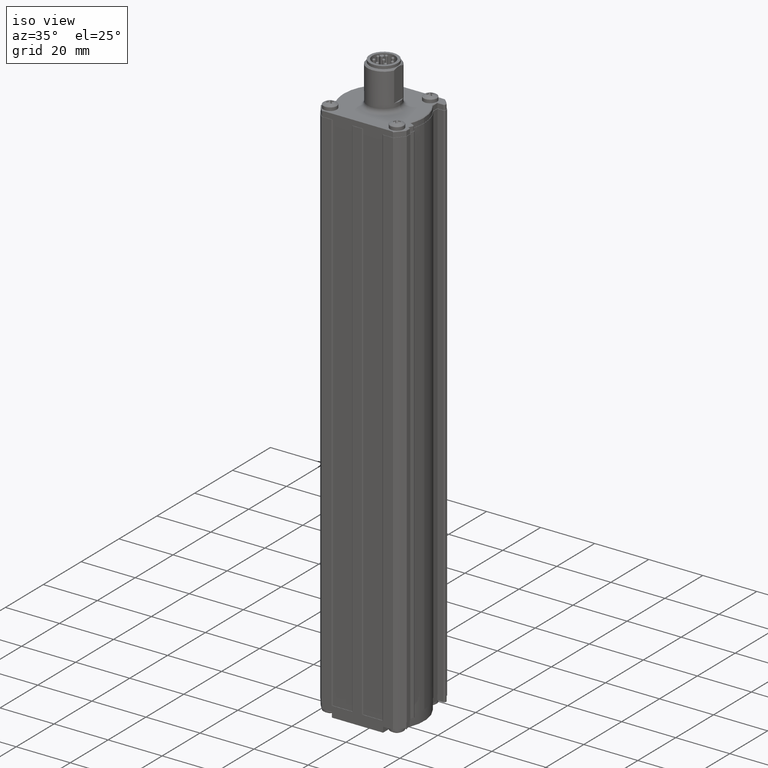
[diagram: clean part render]
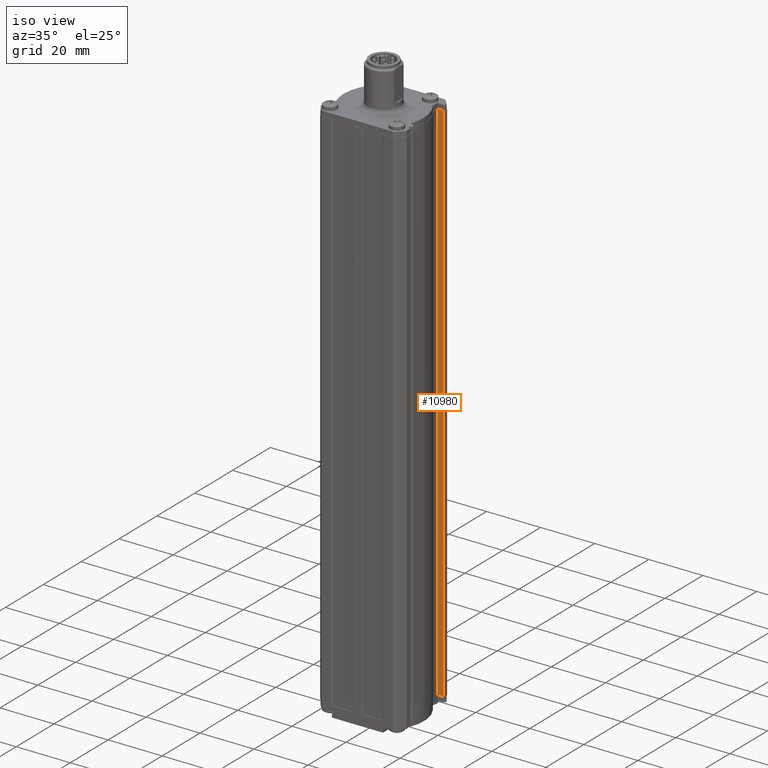
[diagram: same view with one face highlighted and labeled with its STEP entity id]
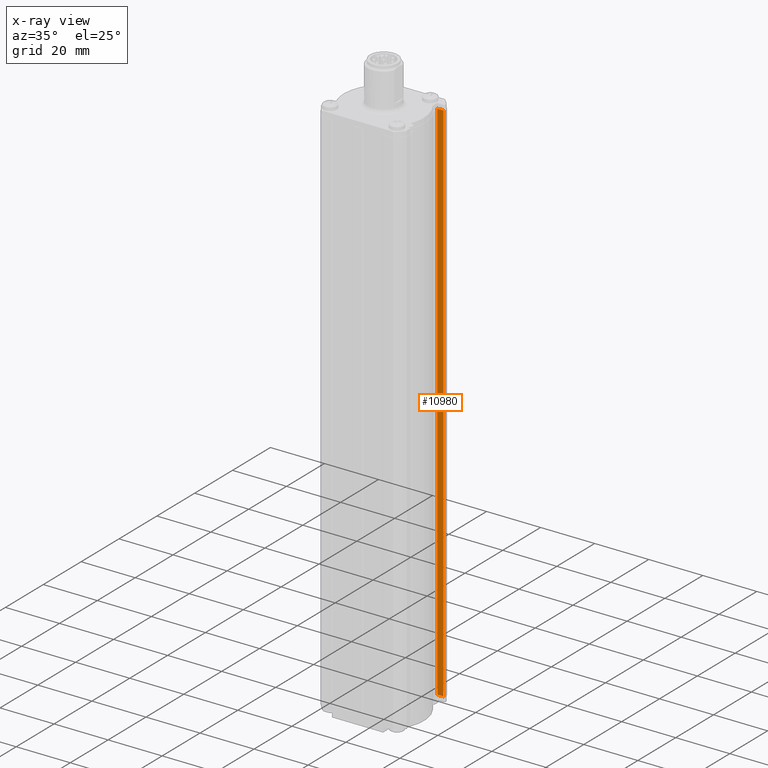
[diagram: x-ray of the same camera — body ghosted, the highlighted face saturated]
A machine part, iso view. The second image highlights one B-rep face of the part: STEP entity #10980.
The next image is the same camera in x-ray: the body ghosted, the highlighted face saturated — about 0% of this face is hidden behind the body in this view.
In plain terms, the highlighted planar face has unit normal (-0, 1, 0).
Its self-contained STEP definition (entity closure, byte-faithful):
#2038 = ORIENTED_EDGE ( 'NONE', *, *, #10685, .T. ) ;
#2157 = VECTOR ( 'NONE', #4445, 1000.000000000000000 ) ;
#3141 = DIRECTION ( 'NONE',  ( -1.000000000000000000, -4.000000000000000311E-15, 0.000000000000000000 ) ) ;
#3616 = DIRECTION ( 'NONE',  ( -1.000000000000000000, -4.000000000000000311E-15, 0.000000000000000000 ) ) ;
#3835 = ORIENTED_EDGE ( 'NONE', *, *, #10927, .F. ) ;
#4301 = LINE ( 'NONE', #15118, #8707 ) ;
#4404 = VERTEX_POINT ( 'NONE', #5914 ) ;
#4445 = DIRECTION ( 'NONE',  ( -1.000000000000000000, -4.000000000000000311E-15, 0.000000000000000000 ) ) ;
#4758 = VERTEX_POINT ( 'NONE', #12448 ) ;
#5434 = VECTOR ( 'NONE', #3616, 1000.000000000000000 ) ;
#5486 = VERTEX_POINT ( 'NONE', #18362 ) ;
#5914 = CARTESIAN_POINT ( 'NONE',  ( 12.29999999999995630, 10.79999999999905036, -1.999999999998947064 ) ) ;
#6637 = DIRECTION ( 'NONE',  ( -0.000000000000000000, 0.000000000000000000, 1.000000000000000000 ) ) ;
#7155 = DIRECTION ( 'NONE',  ( -4.000000000000000311E-15, 1.000000000000000000, 0.000000000000000000 ) ) ;
#7318 = ORIENTED_EDGE ( 'NONE', *, *, #8830, .F. ) ;
#7500 = VECTOR ( 'NONE', #6637, 1000.000000000000000 ) ;
#7814 = DIRECTION ( 'NONE',  ( -0.000000000000000000, 0.000000000000000000, 1.000000000000000000 ) ) ;
#8608 = VERTEX_POINT ( 'NONE', #9162 ) ;
#8707 = VECTOR ( 'NONE', #7814, 1000.000000000000000 ) ;
#8735 = FACE_OUTER_BOUND ( 'NONE', #9276, .T. ) ;
#8830 = EDGE_CURVE ( 'NONE', #4758, #4404, #12251, .T. ) ;
#9162 = CARTESIAN_POINT ( 'NONE',  ( 14.49999999999995737, 10.79999999999905924, -1.999999999998947064 ) ) ;
#9276 = EDGE_LOOP ( 'NONE', ( #3835, #2038, #15455, #7318 ) ) ;
#9523 = CARTESIAN_POINT ( 'NONE',  ( 12.29999999999995630, 10.79999999999905036, -197.9999999999989484 ) ) ;
#9529 = EDGE_CURVE ( 'NONE', #8608, #4404, #16351, .T. ) ;
#10332 = PLANE ( 'NONE',  #16213 ) ;
#10685 = EDGE_CURVE ( 'NONE', #5486, #8608, #4301, .T. ) ;
#10927 = EDGE_CURVE ( 'NONE', #5486, #4758, #12769, .T. ) ;
#10980 = ADVANCED_FACE ( 'NONE', ( #8735 ), #10332, .F. ) ;
#11647 = CARTESIAN_POINT ( 'NONE',  ( 14.99999999999995559, 10.79999999999906279, -197.9999999999989484 ) ) ;
#12251 = LINE ( 'NONE', #9523, #7500 ) ;
#12448 = CARTESIAN_POINT ( 'NONE',  ( 12.29999999999995630, 10.79999999999905036, -197.9999999999989484 ) ) ;
#12769 = LINE ( 'NONE', #11647, #2157 ) ;
#13346 = CARTESIAN_POINT ( 'NONE',  ( 14.99999999999995559, 10.79999999999906279, -1.999999999998947064 ) ) ;
#15118 = CARTESIAN_POINT ( 'NONE',  ( 14.49999999999995737, 10.79999999999905924, -197.9999999999989484 ) ) ;
#15455 = ORIENTED_EDGE ( 'NONE', *, *, #9529, .T. ) ;
#15958 = CARTESIAN_POINT ( 'NONE',  ( 14.99999999999995559, 10.79999999999906279, -197.9999999999989484 ) ) ;
#16213 = AXIS2_PLACEMENT_3D ( 'NONE', #15958, #7155, #3141 ) ;
#16351 = LINE ( 'NONE', #13346, #5434 ) ;
#18362 = CARTESIAN_POINT ( 'NONE',  ( 14.49999999999995737, 10.79999999999905924, -197.9999999999989484 ) ) ;